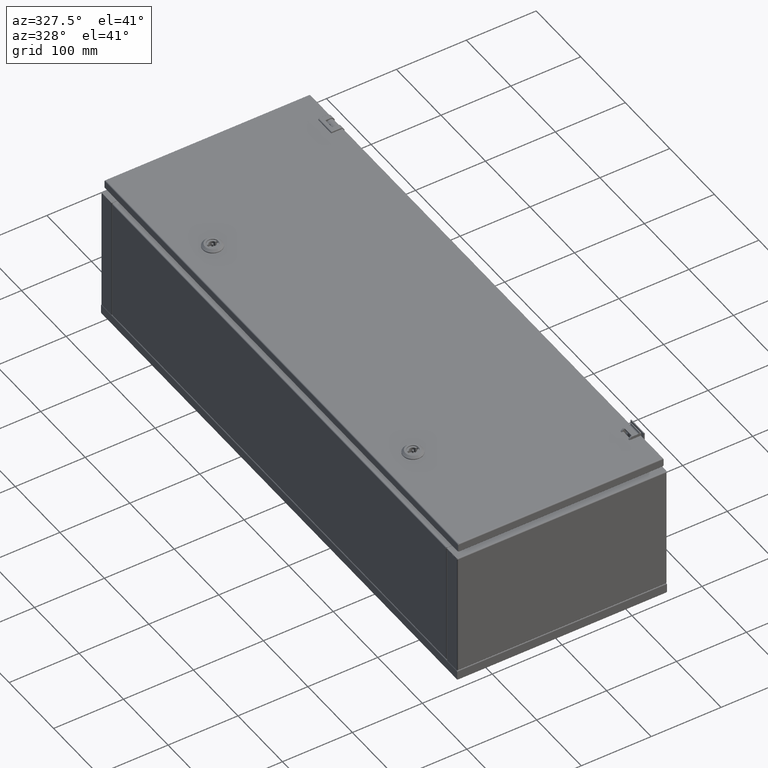
[diagram: clean part render]
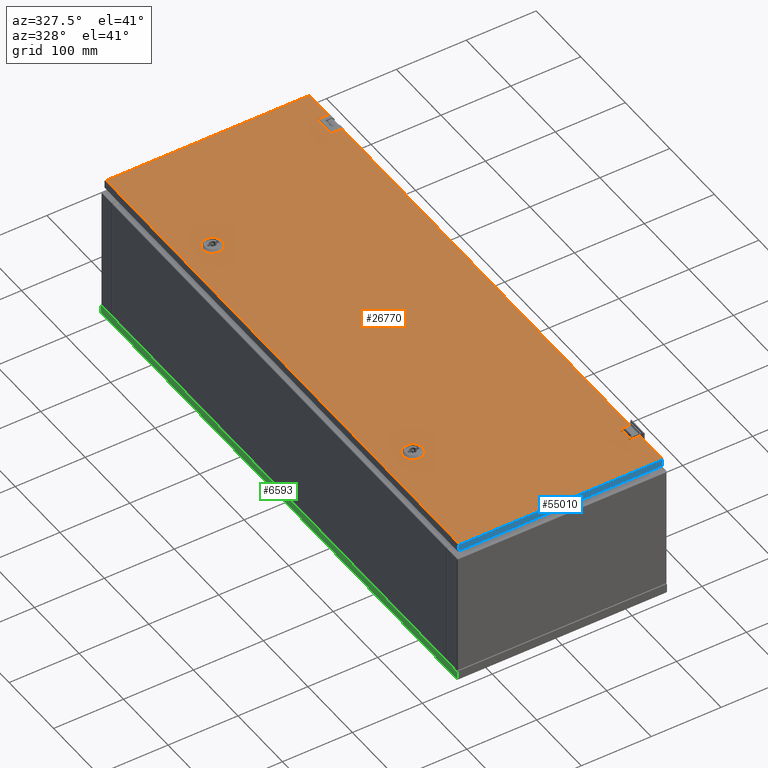
[diagram: same view with three faces highlighted in distinct colors, each labeled with its STEP entity id]
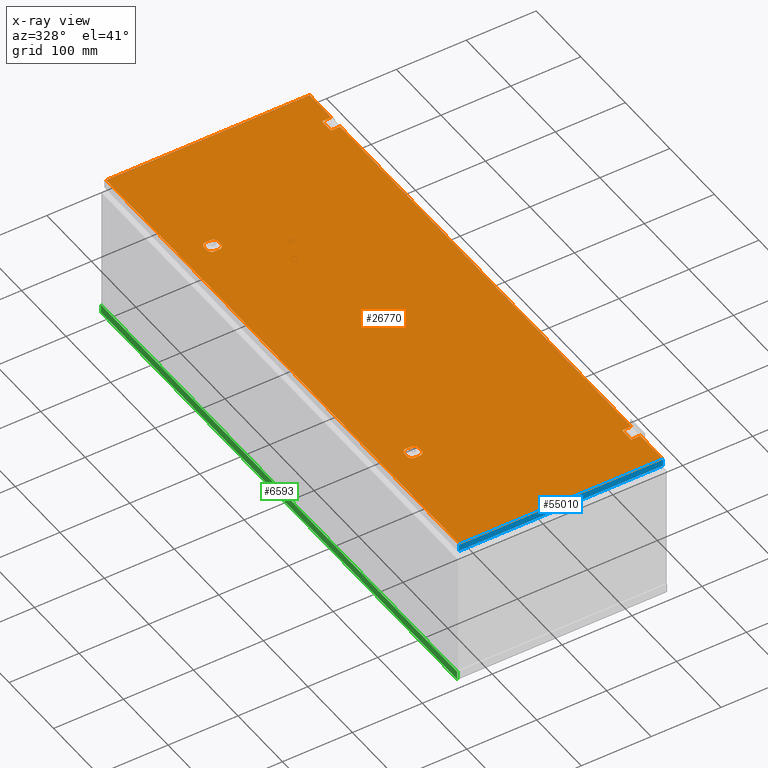
[diagram: x-ray of the same camera — body ghosted, the three highlighted faces saturated]
A machine part, auxiliary view with three faces highlighted in distinct colors.
The next image is the same camera in x-ray (body ghosted, the three faces saturated) — at least one of them is partly hidden behind the body in this view.
Their STEP definitions:

[orange] entity #26770 — the highlighted planar face has unit normal (0, -0, 1).
#324 = PLANE ( 'NONE',  #81774 ) ;
#388 = LINE ( 'NONE', #55357, #61270 ) ;
#928 = ORIENTED_EDGE ( 'NONE', *, *, #6262, .F. ) ;
#2435 = EDGE_CURVE ( 'NONE', #10714, #19543, #51808, .T. ) ;
#2493 = AXIS2_PLACEMENT_3D ( 'NONE', #68059, #54355, #34051 ) ;
#2617 = AXIS2_PLACEMENT_3D ( 'NONE', #44678, #17511, #31218 ) ;
#3644 = EDGE_CURVE ( 'NONE', #87760, #44684, #14140, .T. ) ;
#4591 = LINE ( 'NONE', #18874, #67637 ) ;
#5283 = EDGE_CURVE ( 'NONE', #73676, #18088, #63082, .T. ) ;
#5411 = VECTOR ( 'NONE', #41150, 1000.000000000000000 ) ;
#5894 = VECTOR ( 'NONE', #83123, 1000.000000000000000 ) ;
#6262 = EDGE_CURVE ( 'NONE', #13819, #77827, #42677, .T. ) ;
#6605 = VERTEX_POINT ( 'NONE', #77685 ) ;
#6845 = DIRECTION ( 'NONE',  ( 1.250388681484080200E-014, -3.926495786431195000E-015, 1.000000000000000000 ) ) ;
#7139 = DIRECTION ( 'NONE',  ( 7.401486830834369600E-015, 1.000000000000000000, 4.934324553889579700E-015 ) ) ;
#7197 = VERTEX_POINT ( 'NONE', #25172 ) ;
#7440 = EDGE_CURVE ( 'NONE', #19336, #13819, #60030, .T. ) ;
#7734 = CARTESIAN_POINT ( 'NONE',  ( -145.6464466095022200, -395.6000000000109900, 213.1000000000000200 ) ) ;
#8066 = ORIENTED_EDGE ( 'NONE', *, *, #46457, .F. ) ;
#8116 = ORIENTED_EDGE ( 'NONE', *, *, #22619, .T. ) ;
#9738 = DIRECTION ( 'NONE',  ( 1.000000000000000000, -7.617910074183450000E-015, -1.250388681484082100E-014 ) ) ;
#10346 = EDGE_CURVE ( 'NONE', #34207, #60496, #34008, .T. ) ;
#10714 = VERTEX_POINT ( 'NONE', #87228 ) ;
#11094 = ORIENTED_EDGE ( 'NONE', *, *, #46275, .F. ) ;
#11209 = VERTEX_POINT ( 'NONE', #85287 ) ;
#11675 = CARTESIAN_POINT ( 'NONE',  ( -9.094072211895890000E-011, 215.0999999999880000, 213.1000000000025200 ) ) ;
#12033 = VECTOR ( 'NONE', #85728, 1000.000000000000000 ) ;
#12674 = CARTESIAN_POINT ( 'NONE',  ( -111.8000000000926100, -0.1000000000110818100, 213.1000000000030100 ) ) ;
#12886 = EDGE_CURVE ( 'NONE', #49846, #87760, #37873, .T. ) ;
#13231 = ORIENTED_EDGE ( 'NONE', *, *, #44162, .T. ) ;
#13677 = CIRCLE ( 'NONE', #2617, 11.25000000000001100 ) ;
#13819 = VERTEX_POINT ( 'NONE', #57338 ) ;
#13971 = CARTESIAN_POINT ( 'NONE',  ( 145.4999999999043900, -395.7464466094199900, 213.1000000000000200 ) ) ;
#13977 = LINE ( 'NONE', #82087, #5411 ) ;
#14140 = CIRCLE ( 'NONE', #82035, 11.25000000000001100 ) ;
#14982 = DIRECTION ( 'NONE',  ( 1.250388681484080200E-014, -3.926495786431195000E-015, 1.000000000000000000 ) ) ;
#15089 = DIRECTION ( 'NONE',  ( 7.617910074183500500E-015, 1.000000000000000000, 3.926495786431100300E-015 ) ) ;
#15811 = LINE ( 'NONE', #28163, #37141 ) ;
#15906 = CARTESIAN_POINT ( 'NONE',  ( 132.4999999999101900, 346.8999999999870200, 213.1000000000000200 ) ) ;
#16655 = DIRECTION ( 'NONE',  ( -1.000000000000000000, 7.617910074183450000E-015, 1.250388681484082100E-014 ) ) ;
#17320 = DIRECTION ( 'NONE',  ( -1.000000000000000000, 7.617910074183450000E-015, 1.250388681484082100E-014 ) ) ;
#17343 = LINE ( 'NONE', #13971, #32250 ) ;
#17511 = DIRECTION ( 'NONE',  ( 1.250388681484080200E-014, -3.926495786431195000E-015, 1.000000000000000000 ) ) ;
#18088 = VERTEX_POINT ( 'NONE', #72877 ) ;
#18874 = CARTESIAN_POINT ( 'NONE',  ( -145.5000000000893900, 395.5464466093955000, 213.1000000000050000 ) ) ;
#18942 = EDGE_CURVE ( 'NONE', #31334, #11209, #15811, .T. ) ;
#19128 = CARTESIAN_POINT ( 'NONE',  ( -92.20000000009071100, 230.4247171873204800, 213.1000000000035200 ) ) ;
#19336 = VERTEX_POINT ( 'NONE', #68368 ) ;
#19503 = CIRCLE ( 'NONE', #60649, 11.25000000000001100 ) ;
#19543 = VERTEX_POINT ( 'NONE', #37604 ) ;
#19738 = ORIENTED_EDGE ( 'NONE', *, *, #44661, .F. ) ;
#21273 = CARTESIAN_POINT ( 'NONE',  ( 145.4999999999043900, -395.7464466094199900, 213.1000000000000200 ) ) ;
#21314 = DIRECTION ( 'NONE',  ( -5.105964695398110300E-015, -1.000000000000000000, -3.926495786431135100E-015 ) ) ;
#21483 = ORIENTED_EDGE ( 'NONE', *, *, #68421, .F. ) ;
#21516 = CARTESIAN_POINT ( 'NONE',  ( -92.20000000009081000, 219.3752828126565100, 213.1000000000035200 ) ) ;
#21551 = DIRECTION ( 'NONE',  ( 7.401486830834369600E-015, 1.000000000000000000, 4.934324553889579700E-015 ) ) ;
#21742 = ORIENTED_EDGE ( 'NONE', *, *, #36497, .F. ) ;
#21895 = LINE ( 'NONE', #21273, #5894 ) ;
#22401 = DIRECTION ( 'NONE',  ( -1.000000000000000000, 1.144626533151156100E-014, 1.250388681484084100E-014 ) ) ;
#22455 = CARTESIAN_POINT ( 'NONE',  ( -92.20000000009410700, -219.5752828126795200, 213.1000000000000200 ) ) ;
#22619 = EDGE_CURVE ( 'NONE', #7197, #86666, #72785, .T. ) ;
#22890 = CARTESIAN_POINT ( 'NONE',  ( -9.079141108150489500E-011, 234.6999999999875100, 213.1000000000025200 ) ) ;
#22926 = VERTEX_POINT ( 'NONE', #59650 ) ;
#23147 = CARTESIAN_POINT ( 'NONE',  ( 146.9999999999102200, 326.8999999999869600, 213.1000000000000200 ) ) ;
#23242 = EDGE_CURVE ( 'NONE', #60496, #55722, #80171, .T. ) ;
#24027 = FACE_BOUND ( 'NONE', #77439, .T. ) ;
#24381 = VERTEX_POINT ( 'NONE', #70690 ) ;
#24513 = VECTOR ( 'NONE', #33271, 1000.000000000000000 ) ;
#25154 = CARTESIAN_POINT ( 'NONE',  ( -92.20000000009420700, -230.6247171873430100, 213.1000000000000200 ) ) ;
#25172 = CARTESIAN_POINT ( 'NONE',  ( -145.5000000000955800, -395.6000000000124700, 213.1000000000000200 ) ) ;
#25938 = ORIENTED_EDGE ( 'NONE', *, *, #23242, .F. ) ;
#26203 = CARTESIAN_POINT ( 'NONE',  ( -111.8000000000908000, 219.3752828126565100, 213.1000000000040000 ) ) ;
#26770 = ADVANCED_FACE ( 'NONE', ( #72123, #24027, #42191 ), #324, .T. ) ;
#27161 = CIRCLE ( 'NONE', #55025, 11.25000000000001100 ) ;
#27960 = DIRECTION ( 'NONE',  ( 7.617910074183500500E-015, 1.000000000000000000, 3.926495786431100300E-015 ) ) ;
#27967 = AXIS2_PLACEMENT_3D ( 'NONE', #39185, #32614, #52940 ) ;
#28163 = CARTESIAN_POINT ( 'NONE',  ( 132.4999999999101900, 346.8999999999870200, 213.1000000000000200 ) ) ;
#28982 = CARTESIAN_POINT ( 'NONE',  ( -107.5247171874226000, 215.0999999999884800, 213.1000000000040000 ) ) ;
#29601 = DIRECTION ( 'NONE',  ( 7.401486830834369600E-015, 1.000000000000000000, 4.934324553889579700E-015 ) ) ;
#30454 = EDGE_CURVE ( 'NONE', #36108, #34207, #77489, .T. ) ;
#30931 = CARTESIAN_POINT ( 'NONE',  ( -96.47528281275900500, 215.0999999999884800, 213.1000000000035200 ) ) ;
#31172 = EDGE_CURVE ( 'NONE', #86666, #54085, #21895, .T. ) ;
#31218 = DIRECTION ( 'NONE',  ( 7.401486830834369600E-015, 1.000000000000000000, 4.934324553889579700E-015 ) ) ;
#31334 = VERTEX_POINT ( 'NONE', #15906 ) ;
#32100 = CIRCLE ( 'NONE', #2493, 11.25000000000001100 ) ;
#32250 = VECTOR ( 'NONE', #41132, 1000.000000000000000 ) ;
#32305 = DIRECTION ( 'NONE',  ( -7.617910074183500500E-015, -1.000000000000000000, -3.926495786431100300E-015 ) ) ;
#32614 = DIRECTION ( 'NONE',  ( 1.250388681484080200E-014, -3.926495786431195000E-015, 1.000000000000000000 ) ) ;
#32779 = ORIENTED_EDGE ( 'NONE', *, *, #3644, .F. ) ;
#32849 = VERTEX_POINT ( 'NONE', #53832 ) ;
#33012 = EDGE_CURVE ( 'NONE', #75944, #31334, #48224, .T. ) ;
#33271 = DIRECTION ( 'NONE',  ( -8.873882763576191300E-015, -1.000000000000000000, -3.926495786431085400E-015 ) ) ;
#33440 = ORIENTED_EDGE ( 'NONE', *, *, #38635, .F. ) ;
#33608 = VECTOR ( 'NONE', #17320, 1000.000000000000000 ) ;
#34008 = CIRCLE ( 'NONE', #74961, 11.25000000000001100 ) ;
#34017 = VECTOR ( 'NONE', #71216, 1000.000000000000000 ) ;
#34051 = DIRECTION ( 'NONE',  ( 7.401486830834369600E-015, 1.000000000000000000, 4.934324553889579700E-015 ) ) ;
#34207 = VERTEX_POINT ( 'NONE', #83049 ) ;
#34466 = CARTESIAN_POINT ( 'NONE',  ( 145.4999999999056100, -395.6000000000134900, 213.1000000000000200 ) ) ;
#34973 = VERTEX_POINT ( 'NONE', #52492 ) ;
#35518 = CARTESIAN_POINT ( 'NONE',  ( 132.4999999999049900, -327.1000000000129800, 213.1000000000000200 ) ) ;
#36012 = CARTESIAN_POINT ( 'NONE',  ( -92.20000000009240200, -0.1000000000113714000, 213.1000000000030100 ) ) ;
#36108 = VERTEX_POINT ( 'NONE', #41901 ) ;
#36155 = EDGE_CURVE ( 'NONE', #24381, #54513, #388, .T. ) ;
#36186 = CARTESIAN_POINT ( 'NONE',  ( -102.0000000000905900, 224.8999999999884900, 213.1000000000040000 ) ) ;
#36497 = EDGE_CURVE ( 'NONE', #56869, #49846, #63344, .T. ) ;
#36819 = VECTOR ( 'NONE', #9738, 1000.000000000000000 ) ;
#37141 = VECTOR ( 'NONE', #75936, 1000.000000000000000 ) ;
#37604 = CARTESIAN_POINT ( 'NONE',  ( -107.5247171874259900, -215.3000000000109800, 213.1000000000000200 ) ) ;
#37873 = LINE ( 'NONE', #60050, #44282 ) ;
#38065 = VERTEX_POINT ( 'NONE', #28982 ) ;
#38254 = DIRECTION ( 'NONE',  ( 1.000000000000000000, -7.617910074183450000E-015, -1.250388681484082100E-014 ) ) ;
#38473 = CARTESIAN_POINT ( 'NONE',  ( 145.4999999999048200, -347.1000000000129800, 213.1000000000000200 ) ) ;
#38635 = EDGE_CURVE ( 'NONE', #22926, #34973, #13977, .T. ) ;
#39185 = CARTESIAN_POINT ( 'NONE',  ( -102.0000000000905900, 224.8999999999884900, 213.1000000000040000 ) ) ;
#41132 = DIRECTION ( 'NONE',  ( 7.617910074183500500E-015, 1.000000000000000000, 3.926495786431100300E-015 ) ) ;
#41135 = ORIENTED_EDGE ( 'NONE', *, *, #65100, .F. ) ;
#41150 = DIRECTION ( 'NONE',  ( -1.000000000000000000, 7.617910074183450000E-015, 1.250388681484082100E-014 ) ) ;
#41431 = CARTESIAN_POINT ( 'NONE',  ( 145.4999999999104100, 395.3999999999879800, 213.1000000000000200 ) ) ;
#41624 = ORIENTED_EDGE ( 'NONE', *, *, #44190, .T. ) ;
#41901 = CARTESIAN_POINT ( 'NONE',  ( -107.5247171874259900, -234.9000000000109800, 213.1000000000000200 ) ) ;
#42191 = FACE_OUTER_BOUND ( 'NONE', #50335, .T. ) ;
#42468 = DIRECTION ( 'NONE',  ( 1.250388681484080200E-014, -3.926495786431195000E-015, 1.000000000000000000 ) ) ;
#42677 = LINE ( 'NONE', #12674, #24513 ) ;
#42766 = VECTOR ( 'NONE', #46395, 1000.000000000000000 ) ;
#43594 = CARTESIAN_POINT ( 'NONE',  ( -9.421947061488750300E-011, -215.3000000000119800, 213.1000000000000200 ) ) ;
#44162 = EDGE_CURVE ( 'NONE', #22926, #6605, #17343, .T. ) ;
#44190 = EDGE_CURVE ( 'NONE', #75944, #73676, #58999, .T. ) ;
#44282 = VECTOR ( 'NONE', #59468, 1000.000000000000000 ) ;
#44661 = EDGE_CURVE ( 'NONE', #55722, #10714, #19503, .T. ) ;
#44678 = CARTESIAN_POINT ( 'NONE',  ( -102.0000000000941900, -225.1000000000109900, 213.1000000000000200 ) ) ;
#44684 = VERTEX_POINT ( 'NONE', #75512 ) ;
#44995 = AXIS2_PLACEMENT_3D ( 'NONE', #68708, #82203, #21551 ) ;
#45073 = ORIENTED_EDGE ( 'NONE', *, *, #31172, .T. ) ;
#46275 = EDGE_CURVE ( 'NONE', #19543, #24381, #32100, .T. ) ;
#46395 = DIRECTION ( 'NONE',  ( -1.000000000000000000, 7.617910074183450000E-015, 1.250388681484082100E-014 ) ) ;
#46457 = EDGE_CURVE ( 'NONE', #34973, #32849, #59851, .T. ) ;
#47954 = EDGE_CURVE ( 'NONE', #54513, #36108, #13677, .T. ) ;
#48089 = DIRECTION ( 'NONE',  ( 1.000000000000000000, -7.617910074183450000E-015, -1.250388681484082100E-014 ) ) ;
#48224 = LINE ( 'NONE', #56172, #69593 ) ;
#49846 = VERTEX_POINT ( 'NONE', #21516 ) ;
#50289 = VECTOR ( 'NONE', #69228, 1000.000000000000000 ) ;
#50335 = EDGE_LOOP ( 'NONE', ( #33440, #13231, #73925, #75819, #81427, #41624, #60551, #85651, #8116, #45073, #81751, #8066 ) ) ;
#50523 = LINE ( 'NONE', #78815, #12033 ) ;
#51808 = LINE ( 'NONE', #43594, #33608 ) ;
#52224 = LINE ( 'NONE', #23147, #34017 ) ;
#52492 = CARTESIAN_POINT ( 'NONE',  ( 132.4999999999049900, -327.1000000000129800, 213.1000000000000200 ) ) ;
#52940 = DIRECTION ( 'NONE',  ( 7.401486830834369600E-015, 1.000000000000000000, 4.934324553889579700E-015 ) ) ;
#53832 = CARTESIAN_POINT ( 'NONE',  ( 132.4999999999049900, -347.1000000000129800, 213.1000000000000200 ) ) ;
#54085 = VERTEX_POINT ( 'NONE', #38473 ) ;
#54353 = DIRECTION ( 'NONE',  ( 1.250388681484079100E-014, -3.926495786431195800E-015, 1.000000000000000000 ) ) ;
#54355 = DIRECTION ( 'NONE',  ( 1.250388681484080200E-014, -3.926495786431195000E-015, 1.000000000000000000 ) ) ;
#54513 = VERTEX_POINT ( 'NONE', #80458 ) ;
#54868 = CARTESIAN_POINT ( 'NONE',  ( 145.4999999999043900, -395.7464466094199900, 213.1000000000000200 ) ) ;
#55025 = AXIS2_PLACEMENT_3D ( 'NONE', #69627, #42468, #82533 ) ;
#55315 = VECTOR ( 'NONE', #16655, 1000.000000000000000 ) ;
#55357 = CARTESIAN_POINT ( 'NONE',  ( -111.8000000000929900, -0.1000000000115030100, 213.1000000000030100 ) ) ;
#55629 = EDGE_CURVE ( 'NONE', #77827, #38065, #27161, .T. ) ;
#55722 = VERTEX_POINT ( 'NONE', #22455 ) ;
#56172 = CARTESIAN_POINT ( 'NONE',  ( 146.9999999999102200, 346.8999999999865100, 213.1000000000000200 ) ) ;
#56529 = ORIENTED_EDGE ( 'NONE', *, *, #2435, .F. ) ;
#56869 = VERTEX_POINT ( 'NONE', #30931 ) ;
#57063 = DIRECTION ( 'NONE',  ( 1.250388681484080200E-014, -3.926495786431195000E-015, 1.000000000000000000 ) ) ;
#57338 = CARTESIAN_POINT ( 'NONE',  ( -111.8000000000905900, 230.4247171873204800, 213.1000000000040000 ) ) ;
#58999 = LINE ( 'NONE', #54868, #85744 ) ;
#59274 = EDGE_LOOP ( 'NONE', ( #60845, #72810, #77216, #64278, #11094, #56529, #19738, #25938 ) ) ;
#59468 = DIRECTION ( 'NONE',  ( 8.873882763576191300E-015, 1.000000000000000000, 3.926495786431085400E-015 ) ) ;
#59650 = CARTESIAN_POINT ( 'NONE',  ( 145.4999999999050100, -327.1000000000129800, 213.1000000000000200 ) ) ;
#59851 = LINE ( 'NONE', #35518, #50289 ) ;
#60030 = CIRCLE ( 'NONE', #44995, 11.25000000000001100 ) ;
#60050 = CARTESIAN_POINT ( 'NONE',  ( -92.20000000009271400, -0.1000000000112556100, 213.1000000000030100 ) ) ;
#60496 = VERTEX_POINT ( 'NONE', #25154 ) ;
#60551 = ORIENTED_EDGE ( 'NONE', *, *, #5283, .T. ) ;
#60649 = AXIS2_PLACEMENT_3D ( 'NONE', #81833, #6845, #7139 ) ;
#60845 = ORIENTED_EDGE ( 'NONE', *, *, #10346, .F. ) ;
#61270 = VECTOR ( 'NONE', #21314, 1000.000000000000000 ) ;
#61790 = DIRECTION ( 'NONE',  ( 1.000000000000000000, -7.617910074183450000E-015, -1.250388681484082100E-014 ) ) ;
#61881 = DIRECTION ( 'NONE',  ( 7.401486830834369600E-015, 1.000000000000000000, 4.934324553889579700E-015 ) ) ;
#62711 = EDGE_CURVE ( 'NONE', #11209, #6605, #52224, .T. ) ;
#63082 = LINE ( 'NONE', #67842, #42766 ) ;
#63344 = CIRCLE ( 'NONE', #27967, 11.25000000000001100 ) ;
#64278 = ORIENTED_EDGE ( 'NONE', *, *, #36155, .F. ) ;
#65100 = EDGE_CURVE ( 'NONE', #38065, #56869, #75969, .T. ) ;
#67637 = VECTOR ( 'NONE', #32305, 1000.000000000000000 ) ;
#67842 = CARTESIAN_POINT ( 'NONE',  ( 145.6464466093170000, 395.3999999999865100, 213.1000000000000200 ) ) ;
#68059 = CARTESIAN_POINT ( 'NONE',  ( -102.0000000000941900, -225.1000000000109900, 213.1000000000000200 ) ) ;
#68368 = CARTESIAN_POINT ( 'NONE',  ( -107.5247171874224000, 234.6999999999885100, 213.1000000000040000 ) ) ;
#68421 = EDGE_CURVE ( 'NONE', #44684, #19336, #76658, .T. ) ;
#68708 = CARTESIAN_POINT ( 'NONE',  ( -102.0000000000905900, 224.8999999999884900, 213.1000000000040000 ) ) ;
#69228 = DIRECTION ( 'NONE',  ( -4.842352512620610700E-015, -1.000000000000000000, -3.926495786431135100E-015 ) ) ;
#69593 = VECTOR ( 'NONE', #22401, 1000.000000000000000 ) ;
#69627 = CARTESIAN_POINT ( 'NONE',  ( -102.0000000000905900, 224.8999999999884900, 213.1000000000040000 ) ) ;
#70690 = CARTESIAN_POINT ( 'NONE',  ( -111.8000000000939900, -219.5752828126790100, 213.1000000000000200 ) ) ;
#71216 = DIRECTION ( 'NONE',  ( 1.000000000000000000, -7.617910074183450000E-015, -1.250388681484082100E-014 ) ) ;
#72123 = FACE_BOUND ( 'NONE', #59274, .T. ) ;
#72202 = EDGE_CURVE ( 'NONE', #18088, #7197, #4591, .T. ) ;
#72785 = LINE ( 'NONE', #7734, #74908 ) ;
#72810 = ORIENTED_EDGE ( 'NONE', *, *, #30454, .F. ) ;
#72837 = CARTESIAN_POINT ( 'NONE',  ( 145.4999999999104100, 346.8999999999865100, 213.1000000000000200 ) ) ;
#72877 = CARTESIAN_POINT ( 'NONE',  ( -145.5000000000891900, 395.3999999999879800, 213.1000000000050000 ) ) ;
#73558 = EDGE_CURVE ( 'NONE', #32849, #54085, #50523, .T. ) ;
#73676 = VERTEX_POINT ( 'NONE', #41431 ) ;
#73925 = ORIENTED_EDGE ( 'NONE', *, *, #62711, .F. ) ;
#74781 = VECTOR ( 'NONE', #38254, 1000.000000000000000 ) ;
#74908 = VECTOR ( 'NONE', #61790, 1000.000000000000000 ) ;
#74961 = AXIS2_PLACEMENT_3D ( 'NONE', #76490, #14982, #61881 ) ;
#75512 = CARTESIAN_POINT ( 'NONE',  ( -96.47528281275880600, 234.6999999999885100, 213.1000000000040000 ) ) ;
#75819 = ORIENTED_EDGE ( 'NONE', *, *, #18942, .F. ) ;
#75936 = DIRECTION ( 'NONE',  ( -1.039346763574640100E-014, -1.000000000000000000, -3.926495786431064900E-015 ) ) ;
#75944 = VERTEX_POINT ( 'NONE', #72837 ) ;
#75969 = LINE ( 'NONE', #11675, #74781 ) ;
#76490 = CARTESIAN_POINT ( 'NONE',  ( -102.0000000000941900, -225.1000000000109900, 213.1000000000000200 ) ) ;
#76658 = LINE ( 'NONE', #22890, #55315 ) ;
#76991 = ORIENTED_EDGE ( 'NONE', *, *, #55629, .F. ) ;
#77216 = ORIENTED_EDGE ( 'NONE', *, *, #47954, .F. ) ;
#77439 = EDGE_LOOP ( 'NONE', ( #87888, #21483, #32779, #77608, #21742, #41135, #76991, #928 ) ) ;
#77489 = LINE ( 'NONE', #78102, #36819 ) ;
#77608 = ORIENTED_EDGE ( 'NONE', *, *, #12886, .F. ) ;
#77685 = CARTESIAN_POINT ( 'NONE',  ( 145.4999999999104100, 326.8999999999869600, 213.1000000000000200 ) ) ;
#77827 = VERTEX_POINT ( 'NONE', #26203 ) ;
#78102 = CARTESIAN_POINT ( 'NONE',  ( -9.436878165234149500E-011, -234.9000000000120000, 213.1000000000000200 ) ) ;
#78815 = CARTESIAN_POINT ( 'NONE',  ( 132.4999999999049900, -347.1000000000129800, 213.1000000000000200 ) ) ;
#80171 = LINE ( 'NONE', #36012, #87636 ) ;
#80458 = CARTESIAN_POINT ( 'NONE',  ( -111.8000000000942000, -230.6247171873430100, 213.1000000000000200 ) ) ;
#81244 = CARTESIAN_POINT ( 'NONE',  ( -9.258009636692318900E-011, -0.1000000000120740000, 213.1000000000000200 ) ) ;
#81427 = ORIENTED_EDGE ( 'NONE', *, *, #33012, .F. ) ;
#81751 = ORIENTED_EDGE ( 'NONE', *, *, #73558, .F. ) ;
#81774 = AXIS2_PLACEMENT_3D ( 'NONE', #81244, #54353, #48089 ) ;
#81833 = CARTESIAN_POINT ( 'NONE',  ( -102.0000000000941900, -225.1000000000109900, 213.1000000000000200 ) ) ;
#82035 = AXIS2_PLACEMENT_3D ( 'NONE', #36186, #57063, #29601 ) ;
#82087 = CARTESIAN_POINT ( 'NONE',  ( 132.4999999999049900, -327.1000000000129800, 213.1000000000000200 ) ) ;
#82203 = DIRECTION ( 'NONE',  ( 1.250388681484080200E-014, -3.926495786431195000E-015, 1.000000000000000000 ) ) ;
#82533 = DIRECTION ( 'NONE',  ( 7.401486830834369600E-015, 1.000000000000000000, 4.934324553889579700E-015 ) ) ;
#83049 = CARTESIAN_POINT ( 'NONE',  ( -96.47528281276240100, -234.9000000000109800, 213.1000000000000200 ) ) ;
#83123 = DIRECTION ( 'NONE',  ( 7.617910074183500500E-015, 1.000000000000000000, 3.926495786431100300E-015 ) ) ;
#85287 = CARTESIAN_POINT ( 'NONE',  ( 132.4999999999099900, 326.8999999999869600, 213.1000000000000200 ) ) ;
#85651 = ORIENTED_EDGE ( 'NONE', *, *, #72202, .T. ) ;
#85728 = DIRECTION ( 'NONE',  ( 1.000000000000000000, -3.789554816855330000E-015, -1.250388681484080200E-014 ) ) ;
#85744 = VECTOR ( 'NONE', #27960, 1000.000000000000000 ) ;
#86666 = VERTEX_POINT ( 'NONE', #34466 ) ;
#87228 = CARTESIAN_POINT ( 'NONE',  ( -96.47528281276220200, -215.3000000000109800, 213.1000000000000200 ) ) ;
#87636 = VECTOR ( 'NONE', #15089, 1000.000000000000000 ) ;
#87760 = VERTEX_POINT ( 'NONE', #19128 ) ;
#87888 = ORIENTED_EDGE ( 'NONE', *, *, #7440, .F. ) ;

[blue] entity #55010 — the highlighted planar face has unit normal (0, 1, -0).
#1067 = VECTOR ( 'NONE', #44345, 1000.000000000000000 ) ;
#2480 = LINE ( 'NONE', #69504, #23776 ) ;
#2794 = FACE_OUTER_BOUND ( 'NONE', #31175, .T. ) ;
#3436 = DIRECTION ( 'NONE',  ( -9.693372608925780800E-015, 1.831905357796374900E-015, -1.000000000000000000 ) ) ;
#3871 = ORIENTED_EDGE ( 'NONE', *, *, #39392, .F. ) ;
#8629 = DIRECTION ( 'NONE',  ( -1.787853915868400000E-014, -9.436522037664000800E-016, -1.000000000000000000 ) ) ;
#15221 = CARTESIAN_POINT ( 'NONE',  ( -9.567242170442009400E-011, -397.1000000000120200, 212.1000000000000200 ) ) ;
#16893 = LINE ( 'NONE', #58696, #24387 ) ;
#16936 = CARTESIAN_POINT ( 'NONE',  ( -145.9000000000958200, -397.1000000000104800, 201.5999999999999900 ) ) ;
#23776 = VECTOR ( 'NONE', #8629, 1000.000000000000000 ) ;
#24387 = VECTOR ( 'NONE', #3436, 1000.000000000000000 ) ;
#27239 = ORIENTED_EDGE ( 'NONE', *, *, #28082, .T. ) ;
#28082 = EDGE_CURVE ( 'NONE', #45727, #76214, #2480, .T. ) ;
#31018 = ORIENTED_EDGE ( 'NONE', *, *, #42274, .T. ) ;
#31175 = EDGE_LOOP ( 'NONE', ( #31018, #67706, #3871, #27239 ) ) ;
#38078 = CARTESIAN_POINT ( 'NONE',  ( 146.9999999999043900, -397.1000000000129800, 211.6000000000000200 ) ) ;
#39392 = EDGE_CURVE ( 'NONE', #45727, #62196, #74712, .T. ) ;
#40167 = CARTESIAN_POINT ( 'NONE',  ( -145.9000000000953900, -397.1000000000109900, 211.6000000000000200 ) ) ;
#42185 = LINE ( 'NONE', #88046, #75257 ) ;
#42274 = EDGE_CURVE ( 'NONE', #76214, #66130, #42185, .T. ) ;
#44345 = DIRECTION ( 'NONE',  ( 1.000000000000000000, -7.617910074183450000E-015, -1.250388681484082100E-014 ) ) ;
#45727 = VERTEX_POINT ( 'NONE', #40167 ) ;
#50154 = CARTESIAN_POINT ( 'NONE',  ( 145.8999999999042000, -397.1000000000134900, 211.6000000000000200 ) ) ;
#51026 = AXIS2_PLACEMENT_3D ( 'NONE', #15221, #62999, #53750 ) ;
#53750 = DIRECTION ( 'NONE',  ( -1.250388681484082100E-014, -6.994334828402880400E-016, -1.000000000000000000 ) ) ;
#55010 = ADVANCED_FACE ( 'NONE', ( #2794 ), #60624, .F. ) ;
#58696 = CARTESIAN_POINT ( 'NONE',  ( 145.8999999999042000, -397.1000000000129800, 211.6000000000000200 ) ) ;
#60624 = PLANE ( 'NONE',  #51026 ) ;
#62196 = VERTEX_POINT ( 'NONE', #50154 ) ;
#62795 = EDGE_CURVE ( 'NONE', #62196, #66130, #16893, .T. ) ;
#62999 = DIRECTION ( 'NONE',  ( 7.617910074183440600E-015, 1.000000000000000000, -6.994334828403833000E-016 ) ) ;
#66130 = VERTEX_POINT ( 'NONE', #75085 ) ;
#67410 = DIRECTION ( 'NONE',  ( 1.000000000000000000, -7.617910074183450000E-015, -1.250388681484082100E-014 ) ) ;
#67706 = ORIENTED_EDGE ( 'NONE', *, *, #62795, .F. ) ;
#69504 = CARTESIAN_POINT ( 'NONE',  ( -145.9000000000953900, -397.1000000000109900, 211.6000000000000200 ) ) ;
#74712 = LINE ( 'NONE', #38078, #1067 ) ;
#75085 = CARTESIAN_POINT ( 'NONE',  ( 145.8999999999040000, -397.1000000000129800, 201.5999999999974900 ) ) ;
#75257 = VECTOR ( 'NONE', #67410, 1000.000000000000000 ) ;
#76214 = VERTEX_POINT ( 'NONE', #16936 ) ;
#88046 = CARTESIAN_POINT ( 'NONE',  ( -145.6464466095024200, -397.1000000000104800, 201.5999999999999900 ) ) ;

[green] entity #6593 — the highlighted planar face has unit normal (1, -0, 0).
#160 = DIRECTION ( 'NONE',  ( 9.860761315262649800E-032, 1.000000000000000000, -4.446052040191364800E-033 ) ) ;
#2801 = EDGE_CURVE ( 'NONE', #14346, #57654, #26040, .T. ) ;
#3102 = CARTESIAN_POINT ( 'NONE',  ( -150.0000000000000000, 400.0000000000000000, 0.4999999999997509800 ) ) ;
#4179 = EDGE_CURVE ( 'NONE', #26837, #56872, #16144, .T. ) ;
#6593 = ADVANCED_FACE ( 'NONE', ( #68372 ), #30492, .F. ) ;
#8682 = LINE ( 'NONE', #23685, #24673 ) ;
#9611 = DIRECTION ( 'NONE',  ( 3.965082230804130600E-015, -1.471284702504955800E-031, -1.000000000000000000 ) ) ;
#14346 = VERTEX_POINT ( 'NONE', #77241 ) ;
#16144 = LINE ( 'NONE', #3102, #18276 ) ;
#16375 = EDGE_CURVE ( 'NONE', #56872, #57654, #8682, .T. ) ;
#17081 = CARTESIAN_POINT ( 'NONE',  ( -150.0000000000000000, -5.211461215208609800E-015, -8.326672684688670000E-013 ) ) ;
#18276 = VECTOR ( 'NONE', #71757, 1000.000000000000000 ) ;
#20161 = CARTESIAN_POINT ( 'NONE',  ( -150.0000000000000000, -398.2928932188135000, 12.49999999999976000 ) ) ;
#23345 = CARTESIAN_POINT ( 'NONE',  ( -150.0000000000000000, 400.0000000000000000, 0.4999999999997779600 ) ) ;
#23685 = CARTESIAN_POINT ( 'NONE',  ( -150.0000000000000000, 400.0000000000000000, 0.4999999999997509800 ) ) ;
#23891 = VECTOR ( 'NONE', #160, 1000.000000000000000 ) ;
#24673 = VECTOR ( 'NONE', #50635, 1000.000000000000000 ) ;
#26040 = LINE ( 'NONE', #20161, #23891 ) ;
#26653 = AXIS2_PLACEMENT_3D ( 'NONE', #17081, #36501, #9611 ) ;
#26837 = VERTEX_POINT ( 'NONE', #28917 ) ;
#28917 = CARTESIAN_POINT ( 'NONE',  ( -150.0000000000000000, -400.0000000000000000, 0.4999999999997509800 ) ) ;
#30302 = DIRECTION ( 'NONE',  ( -4.625929269271450600E-015, -4.625929269271450600E-015, 1.000000000000000000 ) ) ;
#30449 = EDGE_CURVE ( 'NONE', #26837, #14346, #60364, .T. ) ;
#30492 = PLANE ( 'NONE',  #26653 ) ;
#35390 = CARTESIAN_POINT ( 'NONE',  ( -150.0000000000000000, -400.0000000000000000, 0.4999999999997509800 ) ) ;
#36501 = DIRECTION ( 'NONE',  ( 1.000000000000000000, -6.938893903907259200E-017, 3.965082230804130600E-015 ) ) ;
#47774 = ORIENTED_EDGE ( 'NONE', *, *, #4179, .F. ) ;
#48635 = VECTOR ( 'NONE', #30302, 1000.000000000000000 ) ;
#50635 = DIRECTION ( 'NONE',  ( -9.251858538542991200E-015, 1.479039564514592000E-031, 1.000000000000000000 ) ) ;
#56872 = VERTEX_POINT ( 'NONE', #23345 ) ;
#57654 = VERTEX_POINT ( 'NONE', #82649 ) ;
#60364 = LINE ( 'NONE', #35390, #48635 ) ;
#68372 = FACE_OUTER_BOUND ( 'NONE', #86350, .T. ) ;
#69985 = ORIENTED_EDGE ( 'NONE', *, *, #2801, .T. ) ;
#71757 = DIRECTION ( 'NONE',  ( 6.938893903907249300E-017, 1.000000000000000000, -3.469446951953614800E-017 ) ) ;
#77241 = CARTESIAN_POINT ( 'NONE',  ( -150.0000000000000000, -400.0000000000000000, 12.49999999999954000 ) ) ;
#82649 = CARTESIAN_POINT ( 'NONE',  ( -150.0000000000000000, 400.0000000000000000, 12.49999999999976000 ) ) ;
#83220 = ORIENTED_EDGE ( 'NONE', *, *, #30449, .T. ) ;
#86228 = ORIENTED_EDGE ( 'NONE', *, *, #16375, .F. ) ;
#86350 = EDGE_LOOP ( 'NONE', ( #69985, #86228, #47774, #83220 ) ) ;